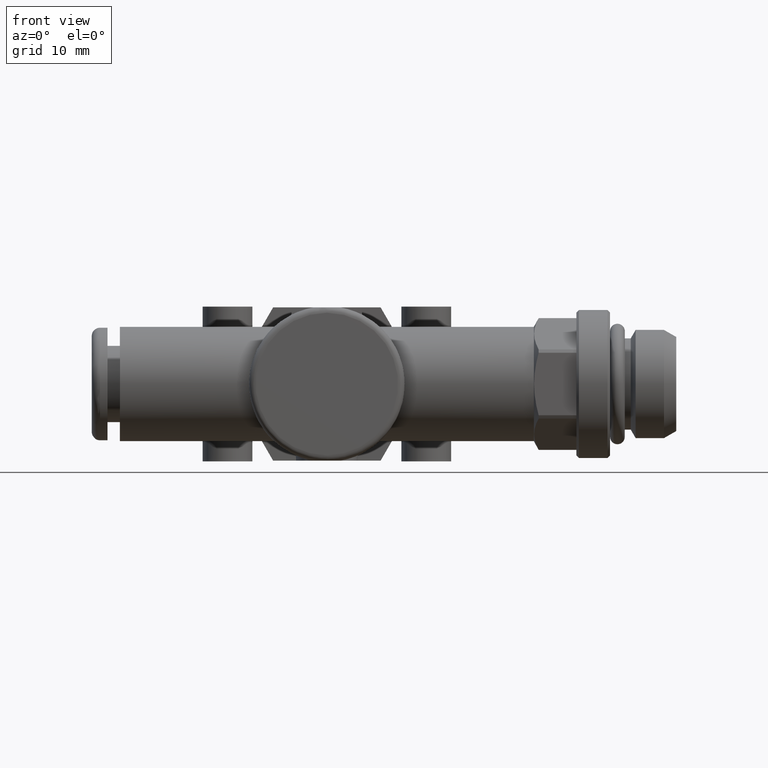
[diagram: clean part render]
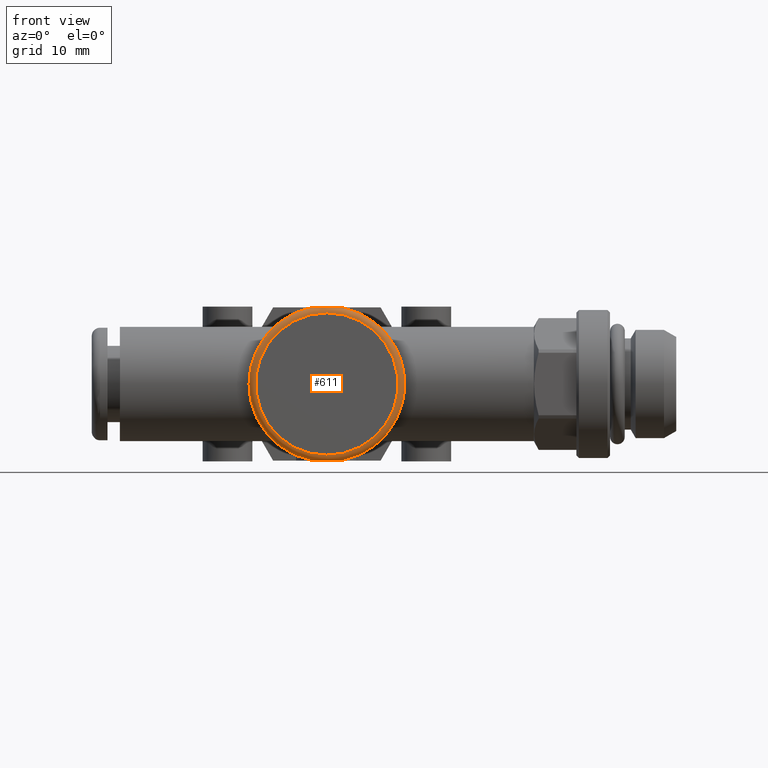
[diagram: same view with one face highlighted and labeled with its STEP entity id]
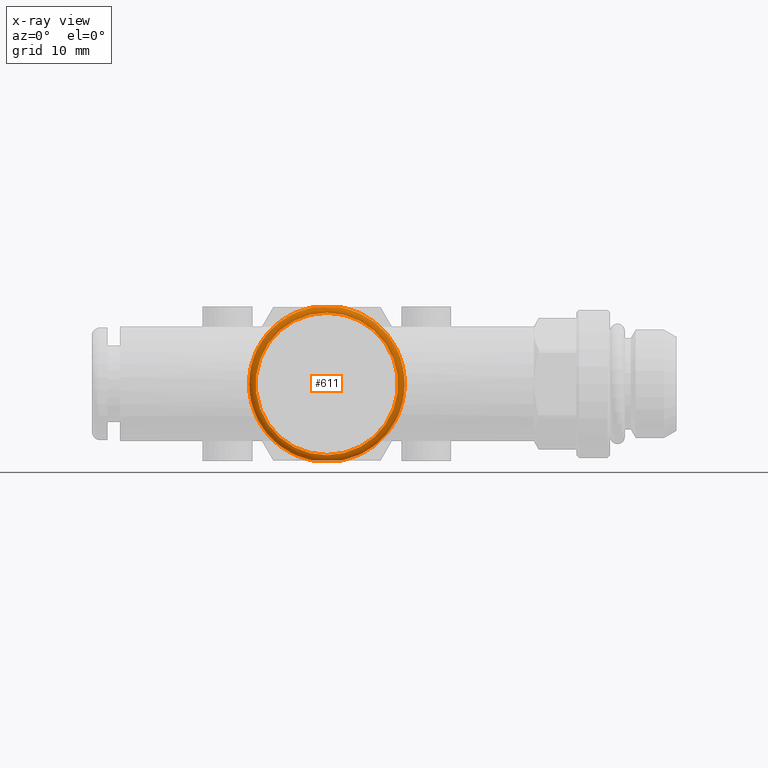
[diagram: x-ray of the same camera — body ghosted, the highlighted face saturated]
A machine part, front view. The second image highlights one B-rep face of the part: STEP entity #611.
The next image is the same camera in x-ray: the body ghosted, the highlighted face saturated — about 0% of this face is hidden behind the body in this view.
In plain terms, the highlighted toroidal blend (fillet) surface has major radius 8.6 mm and minor (blend) radius 0.8 mm.
Its self-contained STEP definition (entity closure, byte-faithful):
#611 = ADVANCED_FACE( '', ( #1266, #1267 ), #1268, .T. );
#1266 = FACE_OUTER_BOUND( '', #1937, .T. );
#1267 = FACE_OUTER_BOUND( '', #1938, .T. );
#1268 = TOROIDAL_SURFACE( '', #1939, 8.60000000000000, 0.800000000000002 );
#1937 = EDGE_LOOP( '', ( #3228, #3229, #3230, #3231 ) );
#1938 = EDGE_LOOP( '', ( #3232 ) );
#1939 = AXIS2_PLACEMENT_3D( '', #3233, #3234, #3235 );
#3228 = ORIENTED_EDGE( '', *, *, #4010, .F. );
#3229 = ORIENTED_EDGE( '', *, *, #4030, .T. );
#3230 = ORIENTED_EDGE( '', *, *, #4041, .F. );
#3231 = ORIENTED_EDGE( '', *, *, #4042, .T. );
#3232 = ORIENTED_EDGE( '', *, *, #3708, .F. );
#3233 = CARTESIAN_POINT( '', ( 0.000000000000000, -8.30000000000000, 0.000000000000000 ) );
#3234 = DIRECTION( '', ( 0.000000000000000, -1.00000000000000, -0.000000000000000 ) );
#3235 = DIRECTION( '', ( 0.000000000000000, 0.000000000000000, -1.00000000000000 ) );
#3708 = EDGE_CURVE( '', #4383, #4383, #4384, .T. );
#4010 = EDGE_CURVE( '', #4819, #4821, #4822, .T. );
#4030 = EDGE_CURVE( '', #4819, #4845, #4846, .T. );
#4041 = EDGE_CURVE( '', #4861, #4845, #4862, .T. );
#4042 = EDGE_CURVE( '', #4861, #4821, #4863, .T. );
#4383 = VERTEX_POINT( '', #5291 );
#4384 = CIRCLE( '', #5292, 8.60000000000000 );
#4819 = VERTEX_POINT( '', #6280 );
#4821 = VERTEX_POINT( '', #6283 );
#4822 = B_SPLINE_CURVE_WITH_KNOTS( '', 3, ( #6284, #6285, #6286, #6287, #6288, #6289, #6290, #6291, #6292, #6293, #6294, #6295, #6296, #6297, #6298, #6299, #6300, #6301, #6302, #6303, #6304, #6305 ), .UNSPECIFIED., .F., .F., ( 4, 2, 2, 2, 2, 2, 2, 2, 2, 2, 4 ), ( 0.00548674398466226, 0.00560066561936967, 0.00571458725407708, 0.00594243052349190, 0.00639811706232154, 0.00730949013998081, 0.00822086321764009, 0.00867654975646972, 0.00890439302588454, 0.00901831466059195, 0.00913223629529936 ), .UNSPECIFIED. );
#4845 = VERTEX_POINT( '', #6333 );
#4846 = CIRCLE( '', #6334, 9.40000000000000 );
#4861 = VERTEX_POINT( '', #6462 );
#4862 = B_SPLINE_CURVE_WITH_KNOTS( '', 3, ( #6463, #6464, #6465, #6466, #6467, #6468, #6469, #6470, #6471, #6472, #6473, #6474, #6475, #6476, #6477, #6478, #6479, #6480, #6481, #6482, #6483, #6484 ), .UNSPECIFIED., .F., .F., ( 4, 2, 2, 2, 2, 2, 2, 2, 2, 2, 4 ), ( 0.00548674398466226, 0.00560066561936967, 0.00571458725407708, 0.00594243052349190, 0.00639811706232154, 0.00730949013998081, 0.00822086321764009, 0.00867654975646972, 0.00890439302588454, 0.00901831466059195, 0.00913223629529936 ), .UNSPECIFIED. );
#4863 = CIRCLE( '', #6485, 9.40000000000000 );
#5291 = CARTESIAN_POINT( '', ( 0.000000000000000, -9.10000000000000, -8.60000000000000 ) );
#5292 = AXIS2_PLACEMENT_3D( '', #6871, #6872, #6873 );
#6280 = CARTESIAN_POINT( '', ( 1.67257286836778, -8.30000000000000, -9.25000000000000 ) );
#6283 = CARTESIAN_POINT( '', ( -1.67257286836870, -8.30000000000078, -9.25000000000000 ) );
#6284 = CARTESIAN_POINT( '', ( 1.67257286837443, -8.29999999999996, -9.25000000000000 ) );
#6285 = CARTESIAN_POINT( '', ( 1.67257286837444, -8.33806728583355, -9.25000000000000 ) );
#6286 = CARTESIAN_POINT( '', ( 1.65587314777277, -8.37549144049542, -9.25000000000000 ) );
#6287 = CARTESIAN_POINT( '', ( 1.60943639738337, -8.43601463646205, -9.25000000000000 ) );
#6288 = CARTESIAN_POINT( '', ( 1.57983493554609, -8.46129566916637, -9.25000000000000 ) );
#6289 = CARTESIAN_POINT( '', ( 1.48650135326004, -8.52683194244745, -9.25000000000000 ) );
#6290 = CARTESIAN_POINT( '', ( 1.41625161918915, -8.55876215565025, -9.25000000000000 ) );
#6291 = CARTESIAN_POINT( '', ( 1.20450962645265, -8.63859459409826, -9.25000000000000 ) );
#6292 = CARTESIAN_POINT( '', ( 1.05599758131416, -8.67191149100260, -9.25000000000000 ) );
#6293 = CARTESIAN_POINT( '', ( 0.608813987277906, -8.74816739329717, -9.25000000000001 ) );
#6294 = CARTESIAN_POINT( '', ( 0.307768663372542, -8.76613227286528, -9.25000000000000 ) );
#6295 = CARTESIAN_POINT( '', ( -0.297475030797506, -8.76660164108544, -9.25000000000000 ) );
#6296 = CARTESIAN_POINT( '', ( -0.603875096460102, -8.74870138543589, -9.25000000000000 ) );
#6297 = CARTESIAN_POINT( '', ( -1.05303643696222, -8.67256776467147, -9.25000000000000 ) );
#6298 = CARTESIAN_POINT( '', ( -1.20095642052042, -8.63971541027620, -9.25000000000000 ) );
#6299 = CARTESIAN_POINT( '', ( -1.41531726153773, -8.55922178759227, -9.25000000000000 ) );
#6300 = CARTESIAN_POINT( '', ( -1.48562053223312, -8.52739280964452, -9.25000000000000 ) );
#6301 = CARTESIAN_POINT( '', ( -1.57985642235266, -8.46130920047564, -9.25000000000000 ) );
#6302 = CARTESIAN_POINT( '', ( -1.60935039700309, -8.43612464844256, -9.25000000000000 ) );
#6303 = CARTESIAN_POINT( '', ( -1.65594873919592, -8.37539499454185, -9.25000000000000 ) );
#6304 = CARTESIAN_POINT( '', ( -1.67257286836781, -8.33824448453661, -9.25000000000000 ) );
#6305 = CARTESIAN_POINT( '', ( -1.67257286836803, -8.30000000000083, -9.25000000000000 ) );
#6333 = CARTESIAN_POINT( '', ( 1.67257286836870, -8.30000000000078, 9.25000000000000 ) );
#6334 = AXIS2_PLACEMENT_3D( '', #7222, #7223, #7224 );
#6462 = CARTESIAN_POINT( '', ( -1.67257286836778, -8.30000000000000, 9.25000000000000 ) );
#6463 = CARTESIAN_POINT( '', ( -1.67257286837443, -8.29999999999996, 9.25000000000000 ) );
#6464 = CARTESIAN_POINT( '', ( -1.67257286837444, -8.33806728583355, 9.25000000000000 ) );
#6465 = CARTESIAN_POINT( '', ( -1.65587314777277, -8.37549144049542, 9.25000000000000 ) );
#6466 = CARTESIAN_POINT( '', ( -1.60943639738337, -8.43601463646205, 9.25000000000000 ) );
#6467 = CARTESIAN_POINT( '', ( -1.57983493554609, -8.46129566916637, 9.25000000000000 ) );
#6468 = CARTESIAN_POINT( '', ( -1.48650135326004, -8.52683194244745, 9.25000000000000 ) );
#6469 = CARTESIAN_POINT( '', ( -1.41625161918915, -8.55876215565025, 9.25000000000000 ) );
#6470 = CARTESIAN_POINT( '', ( -1.20450962645265, -8.63859459409826, 9.25000000000000 ) );
#6471 = CARTESIAN_POINT( '', ( -1.05599758131416, -8.67191149100260, 9.25000000000000 ) );
#6472 = CARTESIAN_POINT( '', ( -0.608813987277906, -8.74816739329717, 9.25000000000001 ) );
#6473 = CARTESIAN_POINT( '', ( -0.307768663372542, -8.76613227286528, 9.25000000000000 ) );
#6474 = CARTESIAN_POINT( '', ( 0.297475030797506, -8.76660164108544, 9.25000000000000 ) );
#6475 = CARTESIAN_POINT( '', ( 0.603875096460102, -8.74870138543589, 9.25000000000000 ) );
#6476 = CARTESIAN_POINT( '', ( 1.05303643696222, -8.67256776467147, 9.25000000000000 ) );
#6477 = CARTESIAN_POINT( '', ( 1.20095642052042, -8.63971541027620, 9.25000000000000 ) );
#6478 = CARTESIAN_POINT( '', ( 1.41531726153773, -8.55922178759227, 9.25000000000000 ) );
#6479 = CARTESIAN_POINT( '', ( 1.48562053223312, -8.52739280964452, 9.25000000000000 ) );
#6480 = CARTESIAN_POINT( '', ( 1.57985642235266, -8.46130920047564, 9.25000000000000 ) );
#6481 = CARTESIAN_POINT( '', ( 1.60935039700309, -8.43612464844256, 9.25000000000000 ) );
#6482 = CARTESIAN_POINT( '', ( 1.65594873919592, -8.37539499454185, 9.25000000000000 ) );
#6483 = CARTESIAN_POINT( '', ( 1.67257286836781, -8.33824448453661, 9.25000000000000 ) );
#6484 = CARTESIAN_POINT( '', ( 1.67257286836803, -8.30000000000083, 9.25000000000000 ) );
#6485 = AXIS2_PLACEMENT_3D( '', #7234, #7235, #7236 );
#6871 = CARTESIAN_POINT( '', ( 0.000000000000000, -9.10000000000000, 0.000000000000000 ) );
#6872 = DIRECTION( '', ( 0.000000000000000, -1.00000000000000, -0.000000000000000 ) );
#6873 = DIRECTION( '', ( 0.000000000000000, 0.000000000000000, -1.00000000000000 ) );
#7222 = CARTESIAN_POINT( '', ( 0.000000000000000, -8.30000000000000, 0.000000000000000 ) );
#7223 = DIRECTION( '', ( 0.000000000000000, -1.00000000000000, -0.000000000000000 ) );
#7224 = DIRECTION( '', ( 0.000000000000000, 0.000000000000000, -1.00000000000000 ) );
#7234 = CARTESIAN_POINT( '', ( 0.000000000000000, -8.30000000000000, 0.000000000000000 ) );
#7235 = DIRECTION( '', ( 0.000000000000000, -1.00000000000000, -0.000000000000000 ) );
#7236 = DIRECTION( '', ( 0.000000000000000, 0.000000000000000, -1.00000000000000 ) );